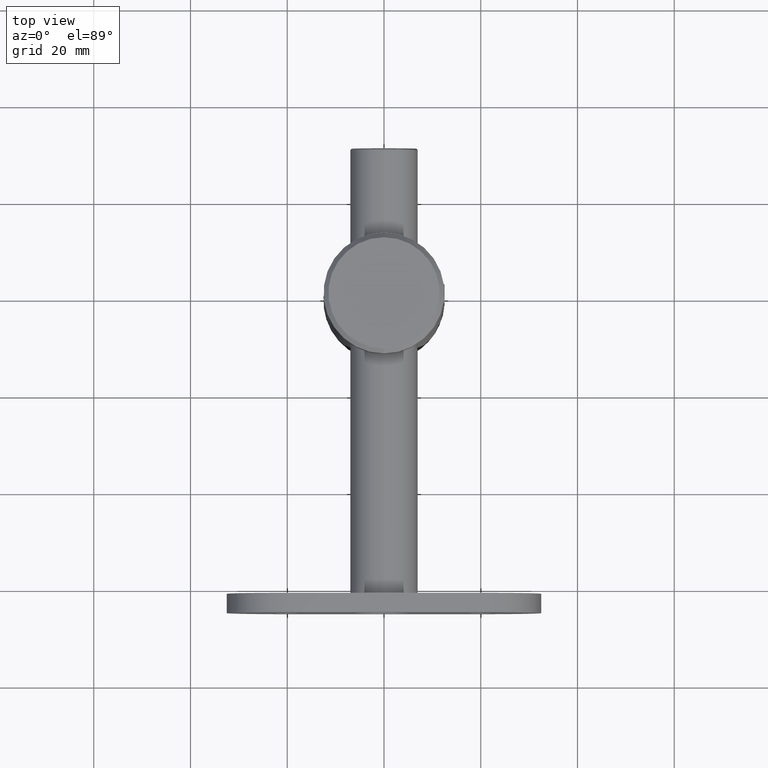
[diagram: clean part render]
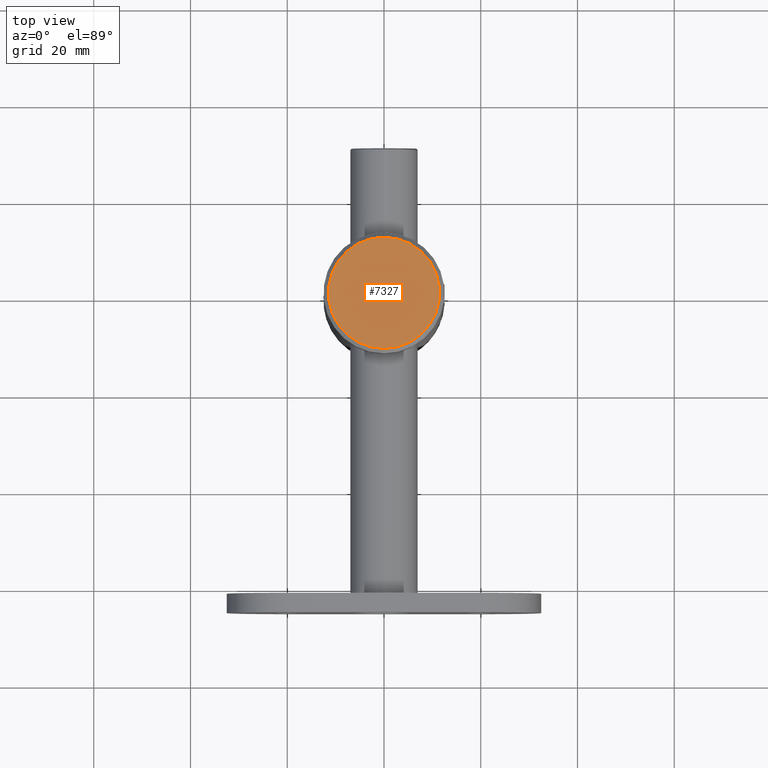
[diagram: same view with one face highlighted and labeled with its STEP entity id]
A machine part, top view. The second image highlights one B-rep face of the part: STEP entity #7327.
In plain terms, the highlighted planar face has unit normal (0, -0, 1).
Its self-contained STEP definition (entity closure, byte-faithful):
#9 = DIRECTION ( 'NONE',  ( 0.000000000000000000, -1.098045870766271941E-16, 1.000000000000000000 ) ) ;
#648 = AXIS2_PLACEMENT_3D ( 'NONE', #1754, #15104, #1808 ) ;
#1448 = FACE_OUTER_BOUND ( 'NONE', #16784, .T. ) ;
#1754 = CARTESIAN_POINT ( 'NONE',  ( 0.000000000000000000, -6.938893903907228378E-15, 88.00000000000000000 ) ) ;
#1808 = DIRECTION ( 'NONE',  ( 0.000000000000000000, -1.000000000000000000, 0.000000000000000000 ) ) ;
#2692 = CARTESIAN_POINT ( 'NONE',  ( 0.000000000000000000, -6.938893903907228378E-15, 88.00000000000000000 ) ) ;
#2711 = ORIENTED_EDGE ( 'NONE', *, *, #12502, .T. ) ;
#3386 = ORIENTED_EDGE ( 'NONE', *, *, #5350, .T. ) ;
#4385 = CIRCLE ( 'NONE', #648, 11.50000000000000888 ) ;
#4618 = DIRECTION ( 'NONE',  ( 0.000000000000000000, -1.000000000000000000, 0.000000000000000000 ) ) ;
#5350 = EDGE_CURVE ( 'NONE', #7621, #12175, #16318, .T. ) ;
#5999 = CARTESIAN_POINT ( 'NONE',  ( 0.000000000000000000, -6.938893903907228378E-15, 88.00000000000000000 ) ) ;
#6775 = AXIS2_PLACEMENT_3D ( 'NONE', #5999, #9, #4618 ) ;
#7184 = PLANE ( 'NONE',  #10409 ) ;
#7327 = ADVANCED_FACE ( 'NONE', ( #1448 ), #7184, .T. ) ;
#7621 = VERTEX_POINT ( 'NONE', #19019 ) ;
#8686 = DIRECTION ( 'NONE',  ( 0.000000000000000000, -1.098045870766271941E-16, 1.000000000000000000 ) ) ;
#10409 = AXIS2_PLACEMENT_3D ( 'NONE', #2692, #8686, #16508 ) ;
#12175 = VERTEX_POINT ( 'NONE', #14096 ) ;
#12502 = EDGE_CURVE ( 'NONE', #12175, #7621, #4385, .T. ) ;
#14096 = CARTESIAN_POINT ( 'NONE',  ( 0.000000000000000000, 11.50000000000000178, 88.00000000000000000 ) ) ;
#15104 = DIRECTION ( 'NONE',  ( 0.000000000000000000, -1.098045870766271941E-16, 1.000000000000000000 ) ) ;
#16318 = CIRCLE ( 'NONE', #6775, 11.50000000000000888 ) ;
#16508 = DIRECTION ( 'NONE',  ( 0.000000000000000000, -1.000000000000000000, -1.098045870766271941E-16 ) ) ;
#16784 = EDGE_LOOP ( 'NONE', ( #2711, #3386 ) ) ;
#19019 = CARTESIAN_POINT ( 'NONE',  ( 1.469576158976824736E-15, -11.50000000000001599, 88.00000000000000000 ) ) ;